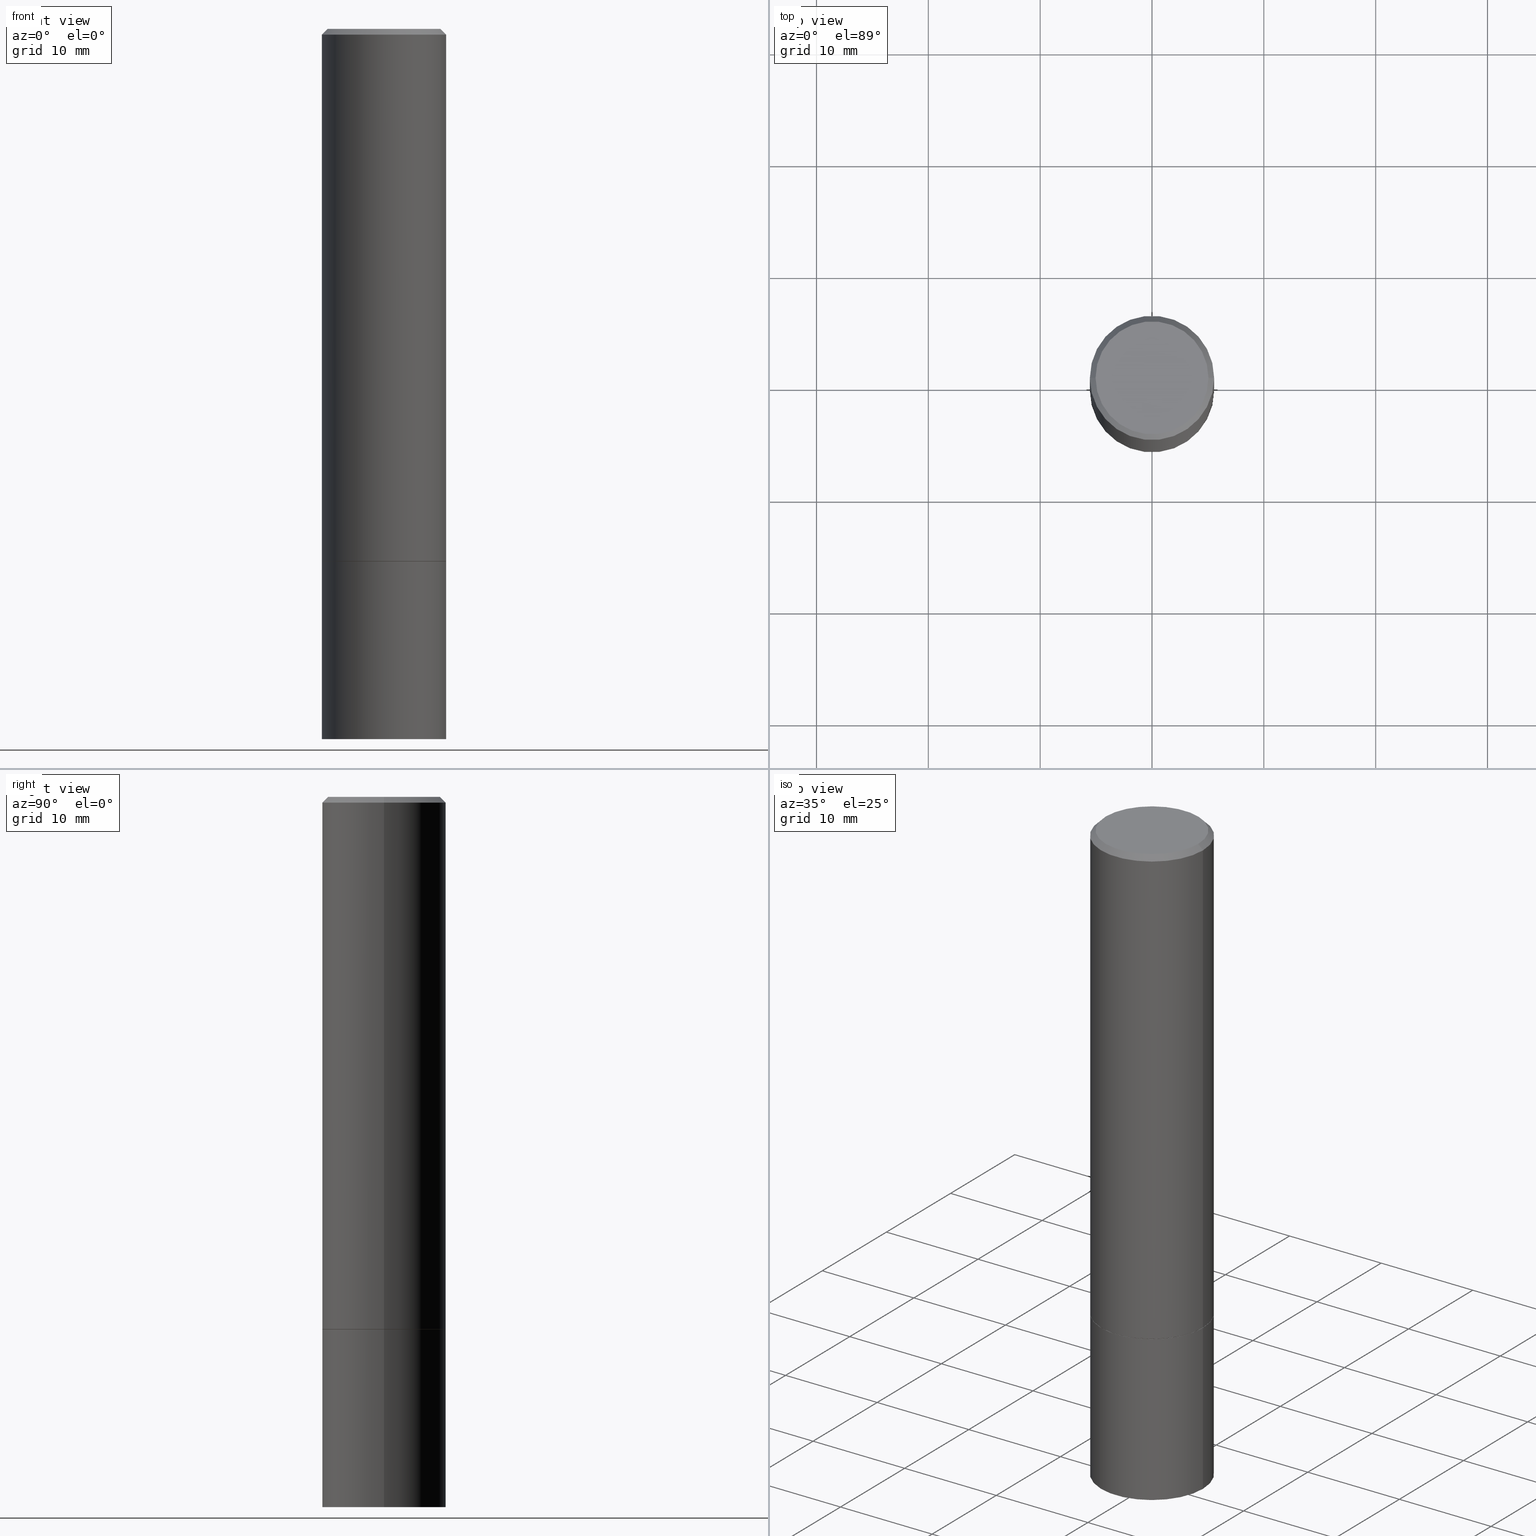
[diagram: canonical four-view strip — front | top / right | iso, engineering-drawing reading convention]
A machine part, canonical four-view strip (front | top / right | iso — engineering-drawing reading convention). The complete STEP part file that produces these views, byte-faithful:
ISO-10303-21;
HEADER;
FILE_DESCRIPTION (( 'STEP AP203' ),
    '1' );
FILE_NAME ('31759.STEP',
    '2024-02-27T13:31:44',
    ( '' ),
    ( '' ),
    'SwSTEP 2.0',
    'SolidWorks 2023',
    '' );
FILE_SCHEMA (( 'CONFIG_CONTROL_DESIGN' ));
ENDSEC;

DATA;
#1 = DIMENSIONAL_EXPONENTS ( 1.000000000000000000, 0.000000000000000000, 0.000000000000000000, 0.000000000000000000, 0.000000000000000000, 0.000000000000000000, 0.000000000000000000 ) ;
#2 = APPROVAL_ROLE ( '' ) ;
#3 = AXIS2_PLACEMENT_3D ( 'NONE', #320, #345, #65 ) ;
#4 = DIRECTION ( 'NONE',  ( 1.000000000000000000, -6.982962677686266711E-15, 4.876176775795935232E-29 ) ) ;
#5 = AXIS2_PLACEMENT_3D ( 'NONE', #137, #243, #55 ) ;
#6 = FACE_OUTER_BOUND ( 'NONE', #306, .T. ) ;
#7 = CALENDAR_DATE ( 2024, 27, 2 ) ;
#8 = EDGE_CURVE ( 'NONE', #352, #261, #10, .T. ) ;
#9 = PERSON_AND_ORGANIZATION_ROLE ( 'classification_officer' ) ;
#10 = CIRCLE ( 'NONE', #242, 0.2187500000000000000 ) ;
#11 = CC_DESIGN_APPROVAL ( #148, ( #36 ) ) ;
#12 = LINE ( 'NONE', #96, #154 ) ;
#13 = EDGE_LOOP ( 'NONE', ( #21, #19, #161, #298 ) ) ;
#14 = CARTESIAN_POINT ( 'NONE',  ( -0.2187500000000000000, -6.083303194244162668E-15, -1.875000000000000000 ) ) ;
#15 = EDGE_CURVE ( 'NONE', #180, #178, #305, .T. ) ;
#16 = ORIENTED_EDGE ( 'NONE', *, *, #341, .F. ) ;
#17 = APPROVAL_PERSON_ORGANIZATION ( #84, #148, #319 ) ;
#18 = CARTESIAN_POINT ( 'NONE',  ( 4.585254011597131119E-29, -6.546527510330898707E-15, -1.875000000000000000 ) ) ;
#19 = ORIENTED_EDGE ( 'NONE', *, *, #170, .T. ) ;
#20 = CARTESIAN_POINT ( 'NONE',  ( 4.585254011597131119E-29, -6.546527510330898707E-15, -1.875000000000000000 ) ) ;
#21 = ORIENTED_EDGE ( 'NONE', *, *, #241, .F. ) ;
#22 = DIRECTION ( 'NONE',  ( -2.445468806185136877E-29, 3.491481338843145188E-15, 1.000000000000000000 ) ) ;
#23 = EDGE_LOOP ( 'NONE', ( #122, #326 ) ) ;
#24 = DIRECTION ( 'NONE',  ( 2.445468806185136597E-29, -3.491481338843145583E-15, -1.000000000000000000 ) ) ;
#25 = LINE ( 'NONE', #364, #303 ) ;
#26 = DIRECTION ( 'NONE',  ( 1.000000000000000000, -6.982962677686266711E-15, 0.000000000000000000 ) ) ;
#27 = ADVANCED_FACE ( 'NONE', ( #107 ), #58, .T. ) ;
#28 = SHAPE_DEFINITION_REPRESENTATION ( #287, #88 ) ;
#29 = CIRCLE ( 'NONE', #66, 0.2187500000000000000 ) ;
#30 = FACE_OUTER_BOUND ( 'NONE', #301, .T. ) ;
#31 = DIRECTION ( 'NONE',  ( -2.445468806185136877E-29, 3.491481338843145188E-15, 1.000000000000000000 ) ) ;
#32 = EDGE_CURVE ( 'NONE', #45, #264, #37, .T. ) ;
#33 = COORDINATED_UNIVERSAL_TIME_OFFSET ( 5, 0, .BEHIND. ) ;
#34 = PERSON_AND_ORGANIZATION ( #142, #275 ) ;
#35 = AXIS2_PLACEMENT_3D ( 'NONE', #140, #246, #304 ) ;
#36 = PRODUCT_DEFINITION_FORMATION_WITH_SPECIFIED_SOURCE ( 'ANY', '', #201, .NOT_KNOWN. ) ;
#37 = CIRCLE ( 'NONE', #333, 0.2187500000000000000 ) ;
#38 = COORDINATED_UNIVERSAL_TIME_OFFSET ( 5, 0, .BEHIND. ) ;
#39 = DIRECTION ( 'NONE',  ( 1.000000000000000000, -6.982962677686266711E-15, 4.876176775795935232E-29 ) ) ;
#40 = SECURITY_CLASSIFICATION ( '', '', #340 ) ;
#41 = PLANE ( 'NONE',  #72 ) ;
#42 = EDGE_CURVE ( 'NONE', #261, #352, #29, .T. ) ;
#43 = FACE_OUTER_BOUND ( 'NONE', #128, .T. ) ;
#44 = VERTEX_POINT ( 'NONE', #219 ) ;
#45 = VERTEX_POINT ( 'NONE', #83 ) ;
#46 = LOCAL_TIME ( 8, 31, 44.00000000000000000, #280 ) ;
#47 = CARTESIAN_POINT ( 'NONE',  ( 0.2187499999999997502, -1.570563563789383855E-15, -0.02000000000000006287 ) ) ;
#48 = ORIENTED_EDGE ( 'NONE', *, *, #89, .T. ) ;
#49 = CC_DESIGN_PERSON_AND_ORGANIZATION_ASSIGNMENT ( #221, #92, ( #91 ) ) ;
#50 = ORIENTED_EDGE ( 'NONE', *, *, #247, .T. ) ;
#51 = AXIS2_PLACEMENT_3D ( 'NONE', #343, #87, #39 ) ;
#52 = CARTESIAN_POINT ( 'NONE',  ( 0.000000000000000000, 0.000000000000000000, 0.000000000000000000 ) ) ;
#53 = CARTESIAN_POINT ( 'NONE',  ( 4.890937612370288923E-31, -6.982962677686312563E-17, -0.02000000000000006287 ) ) ;
#54 = CARTESIAN_POINT ( 'NONE',  ( 4.582808542790945516E-29, -6.543036028992054911E-15, -1.874000000000000110 ) ) ;
#55 = DIRECTION ( 'NONE',  ( 1.000000000000000000, -6.982962677686269077E-15, 0.000000000000000000 ) ) ;
#56 = EDGE_CURVE ( 'NONE', #131, #44, #268, .T. ) ;
#57 = CALENDAR_DATE ( 2024, 27, 2 ) ;
#58 = CYLINDRICAL_SURFACE ( 'NONE', #123, 0.2187499999999998612 ) ;
#59 = CC_DESIGN_PERSON_AND_ORGANIZATION_ASSIGNMENT ( #34, #9, ( #40 ) ) ;
#60 = COORDINATED_UNIVERSAL_TIME_OFFSET ( 5, 0, .BEHIND. ) ;
#61 = CARTESIAN_POINT ( 'NONE',  ( 4.585254011597131119E-29, -6.546527510330898707E-15, -1.875000000000000000 ) ) ;
#62 = AXIS2_PLACEMENT_3D ( 'NONE', #189, #339, #366 ) ;
#63 = FACE_OUTER_BOUND ( 'NONE', #331, .T. ) ;
#64 = PERSON_AND_ORGANIZATION_ROLE ( 'design_supplier' ) ;
#65 = DIRECTION ( 'NONE',  ( -1.000000000000000000, 6.982962677686265922E-15, -4.876176775795935793E-29 ) ) ;
#66 = AXIS2_PLACEMENT_3D ( 'NONE', #109, #223, #169 ) ;
#67 = CYLINDRICAL_SURFACE ( 'NONE', #250, 0.2187499999999998612 ) ;
#68 = CARTESIAN_POINT ( 'NONE',  ( -0.2177499999999999991, -4.999320703213280559E-15, -1.875000000000000000 ) ) ;
#69 = EDGE_LOOP ( 'NONE', ( #103, #330, #75, #156 ) ) ;
#70 = ORIENTED_EDGE ( 'NONE', *, *, #258, .F. ) ;
#71 = EDGE_LOOP ( 'NONE', ( #293, #237, #133, #183 ) ) ;
#72 = AXIS2_PLACEMENT_3D ( 'NONE', #211, #102, #296 ) ;
#73 = ORIENTED_EDGE ( 'NONE', *, *, #15, .F. ) ;
#74 =( NAMED_UNIT ( * ) PLANE_ANGLE_UNIT ( ) SI_UNIT ( $, .RADIAN. ) );
#75 = ORIENTED_EDGE ( 'NONE', *, *, #89, .F. ) ;
#76 = DIRECTION ( 'NONE',  ( 1.000000000000000000, -6.982962677686266711E-15, 4.876176775795935232E-29 ) ) ;
#77 = AXIS2_PLACEMENT_3D ( 'NONE', #18, #132, #179 ) ;
#78 = VECTOR ( 'NONE', #31, 39.37007874015748143 ) ;
#79 = DIRECTION ( 'NONE',  ( 1.000000000000000000, -6.982962677686266711E-15, 0.000000000000000000 ) ) ;
#80 = LENGTH_MEASURE_WITH_UNIT ( LENGTH_MEASURE( 0.02539999999999999897 ), #272 );
#81 = ORIENTED_EDGE ( 'NONE', *, *, #116, .T. ) ;
#82 = EDGE_CURVE ( 'NONE', #105, #263, #274, .T. ) ;
#83 = CARTESIAN_POINT ( 'NONE',  ( 0.2187500000000000000, -8.074050596074770339E-15, -1.875000000000000000 ) ) ;
#84 = PERSON_AND_ORGANIZATION ( #142, #275 ) ;
#85 = CARTESIAN_POINT ( 'NONE',  ( 0.000000000000000000, 0.000000000000000000, 0.000000000000000000 ) ) ;
#86 = PERSON_AND_ORGANIZATION ( #142, #275 ) ;
#87 = DIRECTION ( 'NONE',  ( -2.445468806185136597E-29, 3.491481338843145583E-15, 1.000000000000000000 ) ) ;
#88 = ADVANCED_BREP_SHAPE_REPRESENTATION ( '31759', ( #134, #255, #171 ), #347 ) ;
#89 = EDGE_CURVE ( 'NONE', #105, #229, #284, .T. ) ;
#90 = AXIS2_PLACEMENT_3D ( 'NONE', #309, #24, #214 ) ;
#91 = PRODUCT_DEFINITION ( 'UNKNOWN', '', #36, #279 ) ;
#92 = PERSON_AND_ORGANIZATION_ROLE ( 'creator' ) ;
#93 = FACE_OUTER_BOUND ( 'NONE', #71, .T. ) ;
#94 = ADVANCED_FACE ( 'NONE', ( #30 ), #346, .T. ) ;
#95 = AXIS2_PLACEMENT_3D ( 'NONE', #322, #360, #152 ) ;
#96 = CARTESIAN_POINT ( 'NONE',  ( 0.2177499999999999991, -8.067067633397082747E-15, -1.875000000000000000 ) ) ;
#97 = ORIENTED_EDGE ( 'NONE', *, *, #312, .T. ) ;
#98 = APPLICATION_CONTEXT ( 'configuration controlled 3d designs of mechanical parts and assemblies' ) ;
#99 = AXIS2_PLACEMENT_3D ( 'NONE', #20, #236, #359 ) ;
#100 = LINE ( 'NONE', #357, #138 ) ;
#101 = ORIENTED_EDGE ( 'NONE', *, *, #341, .T. ) ;
#102 = DIRECTION ( 'NONE',  ( 2.438088387897960049E-29, -3.491481338843145188E-15, -1.000000000000000000 ) ) ;
#103 = ORIENTED_EDGE ( 'NONE', *, *, #15, .T. ) ;
#104 = CARTESIAN_POINT ( 'NONE',  ( -0.2187500000000000000, -6.083303194244162668E-15, -2.500000000000000000 ) ) ;
#105 = VERTEX_POINT ( 'NONE', #168 ) ;
#106 = DIRECTION ( 'NONE',  ( 1.000000000000000000, -6.982962677686266711E-15, 0.000000000000000000 ) ) ;
#107 = FACE_OUTER_BOUND ( 'NONE', #13, .T. ) ;
#108 = DIRECTION ( 'NONE',  ( -2.445468806185136597E-29, 3.491481338843145583E-15, 1.000000000000000000 ) ) ;
#109 = CARTESIAN_POINT ( 'NONE',  ( 6.113672015462842613E-29, -8.728703347107864943E-15, -2.500000000000000000 ) ) ;
#110 = CARTESIAN_POINT ( 'NONE',  ( 0.000000000000000000, 0.000000000000000000, 0.000000000000000000 ) ) ;
#111 = APPROVAL ( #193, 'UNSPECIFIED' ) ;
#112 = FACE_OUTER_BOUND ( 'NONE', #235, .T. ) ;
#113 = AXIS2_PLACEMENT_3D ( 'NONE', #110, #334, #192 ) ;
#114 = APPROVAL_DATE_TIME ( #252, #111 ) ;
#115 = CARTESIAN_POINT ( 'NONE',  ( 0.000000000000000000, 0.000000000000000000, 0.000000000000000000 ) ) ;
#116 = EDGE_CURVE ( 'NONE', #44, #131, #353, .T. ) ;
#117 = PERSON_AND_ORGANIZATION ( #142, #275 ) ;
#118 = CALENDAR_DATE ( 2024, 27, 2 ) ;
#119 = CONICAL_SURFACE ( 'NONE', #327, 0.2177499999999999991, 0.7853981633973970977 ) ;
#120 = DATE_AND_TIME ( #208, #217 ) ;
#121 = FACE_OUTER_BOUND ( 'NONE', #356, .T. ) ;
#122 = ORIENTED_EDGE ( 'NONE', *, *, #42, .F. ) ;
#123 = AXIS2_PLACEMENT_3D ( 'NONE', #52, #276, #271 ) ;
#124 = CARTESIAN_POINT ( 'NONE',  ( 0.2187500000000000000, -1.527523085743870843E-15, 1.066663669705360885E-29 ) ) ;
#125 = ORIENTED_EDGE ( 'NONE', *, *, #82, .F. ) ;
#126 = CLOSED_SHELL ( 'NONE', ( #190, #222, #325, #218 ) ) ;
#127 = LINE ( 'NONE', #47, #143 ) ;
#128 = EDGE_LOOP ( 'NONE', ( #238, #101 ) ) ;
#129 = EDGE_CURVE ( 'NONE', #131, #206, #25, .T. ) ;
#130 = CARTESIAN_POINT ( 'NONE',  ( 0.2187499999999997502, -1.570563563789383855E-15, -0.02000000000000006287 ) ) ;
#131 = VERTEX_POINT ( 'NONE', #136 ) ;
#132 = DIRECTION ( 'NONE',  ( -2.438088387897960049E-29, 3.491481338843145188E-15, 1.000000000000000000 ) ) ;
#133 = ORIENTED_EDGE ( 'NONE', *, *, #32, .F. ) ;
#134 = MANIFOLD_SOLID_BREP ( 'Body-Move/Copy2[1]', #126 ) ;
#135 = ORIENTED_EDGE ( 'NONE', *, *, #307, .F. ) ;
#136 = CARTESIAN_POINT ( 'NONE',  ( -0.1987499999999997324, 1.422778645578574712E-15, -9.827974342635069682E-30 ) ) ;
#137 = CARTESIAN_POINT ( 'NONE',  ( 4.582808542790945516E-29, -6.543036028992054911E-15, -1.874000000000000110 ) ) ;
#138 = VECTOR ( 'NONE', #205, 39.37007874015748143 ) ;
#139 = CARTESIAN_POINT ( 'NONE',  ( 4.585254011597131119E-29, -6.546527510330898707E-15, -1.875000000000000000 ) ) ;
#140 = CARTESIAN_POINT ( 'NONE',  ( 4.585254011597131119E-29, -6.546527510330898707E-15, -1.875000000000000000 ) ) ;
#141 = PERSON_AND_ORGANIZATION ( #142, #275 ) ;
#142 = PERSON ( 'UNSPECIFIED', 'UNSPECIFIED', 'UNSPECIFIED', ('UNSPECIFIED'), ('UNSPECIFIED'), ('UNSPECIFIED') ) ;
#143 = VECTOR ( 'NONE', #160, 39.37007874015748143 ) ;
#144 = LOCAL_TIME ( 8, 31, 44.00000000000000000, #173 ) ;
#145 = AXIS2_PLACEMENT_3D ( 'NONE', #61, #228, #226 ) ;
#146 = DIRECTION ( 'NONE',  ( 1.000000000000000000, 0.000000000000000000, 0.000000000000000000 ) ) ;
#147 = FACE_OUTER_BOUND ( 'NONE', #23, .T. ) ;
#148 = APPROVAL ( #310, 'UNSPECIFIED' ) ;
#149 = APPROVAL_DATE_TIME ( #318, #148 ) ;
#150 = FACE_OUTER_BOUND ( 'NONE', #69, .T. ) ;
#151 = ADVANCED_FACE ( 'NONE', ( #112 ), #165, .T. ) ;
#152 = DIRECTION ( 'NONE',  ( 1.000000000000000000, -6.982962677686266711E-15, 0.000000000000000000 ) ) ;
#153 = ORIENTED_EDGE ( 'NONE', *, *, #162, .T. ) ;
#154 = VECTOR ( 'NONE', #182, 39.37007874015748143 ) ;
#155 = ADVANCED_FACE ( 'NONE', ( #194 ), #119, .T. ) ;
#156 = ORIENTED_EDGE ( 'NONE', *, *, #247, .F. ) ;
#157 = DIRECTION ( 'NONE',  ( 1.000000000000000000, -6.982962677686266711E-15, 4.876176775795935793E-29 ) ) ;
#158 = ORIENTED_EDGE ( 'NONE', *, *, #8, .T. ) ;
#159 = APPROVAL ( #196, 'UNSPECIFIED' ) ;
#160 = DIRECTION ( 'NONE',  ( 0.7071067811865469066, -7.319954787623254468E-15, -0.7071067811865482389 ) ) ;
#161 = ORIENTED_EDGE ( 'NONE', *, *, #82, .T. ) ;
#162 = EDGE_CURVE ( 'NONE', #206, #263, #262, .T. ) ;
#163 = AXIS2_PLACEMENT_3D ( 'NONE', #53, #337, #26 ) ;
#164 = ORIENTED_EDGE ( 'NONE', *, *, #312, .F. ) ;
#165 = CONICAL_SURFACE ( 'NONE', #62, 0.2187499999999997502, 0.7853981633974473908 ) ;
#166 = APPLICATION_PROTOCOL_DEFINITION ( 'international standard', 'config_control_design', 1994, #98 ) ;
#167 = DIRECTION ( 'NONE',  ( 1.000000000000000000, -6.982962677686267499E-15, 0.000000000000000000 ) ) ;
#168 = CARTESIAN_POINT ( 'NONE',  ( 0.2187499999999999445, -8.070559114735925754E-15, -1.874000000000000110 ) ) ;
#169 = DIRECTION ( 'NONE',  ( 1.000000000000000000, -6.982962677686267499E-15, 0.000000000000000000 ) ) ;
#170 = EDGE_CURVE ( 'NONE', #229, #105, #294, .T. ) ;
#171 = AXIS2_PLACEMENT_3D ( 'NONE', #115, #348, #146 ) ;
#172 = CARTESIAN_POINT ( 'NONE',  ( 0.2177499999999999991, -8.067067633397082747E-15, -1.875000000000000000 ) ) ;
#173 = COORDINATED_UNIVERSAL_TIME_OFFSET ( 5, 0, .BEHIND. ) ;
#174 = CYLINDRICAL_SURFACE ( 'NONE', #202, 0.2187500000000000000 ) ;
#175 = DIRECTION ( 'NONE',  ( 2.438088387897960049E-29, -3.491481338843145188E-15, -1.000000000000000000 ) ) ;
#176 = LOCAL_TIME ( 8, 31, 44.00000000000000000, #38 ) ;
#177 = LINE ( 'NONE', #124, #198 ) ;
#178 = VERTEX_POINT ( 'NONE', #335 ) ;
#179 = DIRECTION ( 'NONE',  ( 1.000000000000000000, -6.982962677686265922E-15, 4.876176775795935793E-29 ) ) ;
#180 = VERTEX_POINT ( 'NONE', #172 ) ;
#181 = AXIS2_PLACEMENT_3D ( 'NONE', #266, #234, #106 ) ;
#182 = DIRECTION ( 'NONE',  ( 0.7071067811865112684, -2.468850131081876830E-15, 0.7071067811865837660 ) ) ;
#183 = ORIENTED_EDGE ( 'NONE', *, *, #265, .F. ) ;
#184 = DIRECTION ( 'NONE',  ( -2.445468806185136877E-29, 3.491481338843145188E-15, 1.000000000000000000 ) ) ;
#185 = ORIENTED_EDGE ( 'NONE', *, *, #170, .F. ) ;
#186 = ADVANCED_FACE ( 'NONE', ( #150 ), #224, .T. ) ;
#187 = ORIENTED_EDGE ( 'NONE', *, *, #129, .T. ) ;
#188 = APPLICATION_CONTEXT ( 'configuration controlled 3d designs of mechanical parts and assemblies' ) ;
#189 = CARTESIAN_POINT ( 'NONE',  ( 4.890937612370288923E-31, -6.982962677686312563E-17, -0.02000000000000006287 ) ) ;
#190 = ADVANCED_FACE ( 'NONE', ( #93 ), #174, .T. ) ;
#191 = DIRECTION ( 'NONE',  ( -2.445468806185136597E-29, 3.491481338843145583E-15, 1.000000000000000000 ) ) ;
#192 = DIRECTION ( 'NONE',  ( 1.000000000000000000, -6.982962677686266711E-15, 4.876176775795935232E-29 ) ) ;
#193 = APPROVAL_STATUS ( 'not_yet_approved' ) ;
#194 = FACE_OUTER_BOUND ( 'NONE', #358, .T. ) ;
#195 = CC_DESIGN_PERSON_AND_ORGANIZATION_ASSIGNMENT ( #117, #342, ( #201 ) ) ;
#196 = APPROVAL_STATUS ( 'not_yet_approved' ) ;
#197 = APPLICATION_PROTOCOL_DEFINITION ( 'international standard', 'config_control_design', 1994, #188 ) ;
#198 = VECTOR ( 'NONE', #22, 39.37007874015748143 ) ;
#199 = PERSON_AND_ORGANIZATION ( #142, #275 ) ;
#200 = DATE_AND_TIME ( #7, #176 ) ;
#201 = PRODUCT ( '31759', '31759', '', ( #313 ) ) ;
#202 = AXIS2_PLACEMENT_3D ( 'NONE', #349, #281, #4 ) ;
#203 = CARTESIAN_POINT ( 'NONE',  ( -0.2187499999999999445, -1.752120593409238962E-15, -1.874000000000000110 ) ) ;
#204 = ORIENTED_EDGE ( 'NONE', *, *, #258, .T. ) ;
#205 = DIRECTION ( 'NONE',  ( -2.445468806185136877E-29, 3.491481338843145188E-15, 1.000000000000000000 ) ) ;
#206 = VERTEX_POINT ( 'NONE', #251 ) ;
#207 = ORIENTED_EDGE ( 'NONE', *, *, #56, .F. ) ;
#208 = CALENDAR_DATE ( 2024, 27, 2 ) ;
#209 = LINE ( 'NONE', #329, #249 ) ;
#210 = ORIENTED_EDGE ( 'NONE', *, *, #129, .F. ) ;
#211 = CARTESIAN_POINT ( 'NONE',  ( 1.527523085743916400E-15, 0.2187499999999934219, -1.875000000000000888 ) ) ;
#212 = ORIENTED_EDGE ( 'NONE', *, *, #241, .T. ) ;
#213 = UNCERTAINTY_MEASURE_WITH_UNIT (LENGTH_MEASURE( 1.000000000000000082E-05 ), #215, 'distance_accuracy_value', 'NONE');
#214 = DIRECTION ( 'NONE',  ( -1.000000000000000000, 6.982962677686266711E-15, 0.000000000000000000 ) ) ;
#215 =( CONVERSION_BASED_UNIT ( 'INCH', #80 ) LENGTH_UNIT ( ) NAMED_UNIT ( #1 ) );
#216 = DIRECTION ( 'NONE',  ( -2.445468806185136597E-29, 3.491481338843145583E-15, 1.000000000000000000 ) ) ;
#217 = LOCAL_TIME ( 8, 31, 44.00000000000000000, #60 ) ;
#218 = ADVANCED_FACE ( 'NONE', ( #6 ), #351, .T. ) ;
#219 = CARTESIAN_POINT ( 'NONE',  ( 0.1987499999999997324, -1.467043770423236875E-15, 9.982525199991772484E-30 ) ) ;
#220 = CARTESIAN_POINT ( 'NONE',  ( 0.2187499999999998612, -1.527523085743869857E-15, 1.066663669705360324E-29 ) ) ;
#221 = PERSON_AND_ORGANIZATION ( #142, #275 ) ;
#222 = ADVANCED_FACE ( 'NONE', ( #147 ), #314, .T. ) ;
#223 = DIRECTION ( 'NONE',  ( -2.445468806185136597E-29, 3.491481338843145583E-15, 1.000000000000000000 ) ) ;
#224 = CONICAL_SURFACE ( 'NONE', #145, 0.2177499999999999991, 0.7853981633973970977 ) ;
#225 = DATE_TIME_ROLE ( 'classification_date' ) ;
#226 = DIRECTION ( 'NONE',  ( 1.000000000000000000, -6.982962677686266711E-15, 0.000000000000000000 ) ) ;
#227 = ADVANCED_FACE ( 'NONE', ( #63 ), #253, .F. ) ;
#228 = DIRECTION ( 'NONE',  ( -2.445468806185136597E-29, 3.491481338843145583E-15, 1.000000000000000000 ) ) ;
#229 = VERTEX_POINT ( 'NONE', #203 ) ;
#230 = VECTOR ( 'NONE', #291, 39.37007874015748143 ) ;
#231 = PLANE ( 'NONE',  #77 ) ;
#232 = CLOSED_SHELL ( 'NONE', ( #186, #336, #151, #94, #27, #155, #297, #227 ) ) ;
#233 = ORIENTED_EDGE ( 'NONE', *, *, #285, .T. ) ;
#234 = DIRECTION ( 'NONE',  ( -2.445468806185136597E-29, 3.491481338843145583E-15, 1.000000000000000000 ) ) ;
#235 = EDGE_LOOP ( 'NONE', ( #292, #233, #97, #210 ) ) ;
#236 = DIRECTION ( 'NONE',  ( -2.445468806185136597E-29, 3.491481338843145583E-15, 1.000000000000000000 ) ) ;
#237 = ORIENTED_EDGE ( 'NONE', *, *, #254, .T. ) ;
#238 = ORIENTED_EDGE ( 'NONE', *, *, #32, .T. ) ;
#239 = CARTESIAN_POINT ( 'NONE',  ( 6.113672015462842613E-29, -8.728703347107864943E-15, -2.500000000000000000 ) ) ;
#240 = CARTESIAN_POINT ( 'NONE',  ( 4.585254011597131119E-29, -6.546527510330898707E-15, -1.875000000000000000 ) ) ;
#241 = EDGE_CURVE ( 'NONE', #229, #206, #209, .T. ) ;
#242 = AXIS2_PLACEMENT_3D ( 'NONE', #239, #191, #362 ) ;
#243 = DIRECTION ( 'NONE',  ( -2.445468806185136597E-29, 3.491481338843145583E-15, 1.000000000000000000 ) ) ;
#244 = CC_DESIGN_SECURITY_CLASSIFICATION ( #40, ( #36 ) ) ;
#245 = CC_DESIGN_PERSON_AND_ORGANIZATION_ASSIGNMENT ( #141, #64, ( #36 ) ) ;
#246 = DIRECTION ( 'NONE',  ( -2.445468806185136597E-29, 3.491481338843145583E-15, 1.000000000000000000 ) ) ;
#247 = EDGE_CURVE ( 'NONE', #180, #105, #12, .T. ) ;
#248 = DATE_AND_TIME ( #118, #283 ) ;
#249 = VECTOR ( 'NONE', #184, 39.37007874015748143 ) ;
#250 = AXIS2_PLACEMENT_3D ( 'NONE', #260, #355, #157 ) ;
#251 = CARTESIAN_POINT ( 'NONE',  ( -0.2187499999999997502, 1.457693458967005967E-15, -0.02000000000000006287 ) ) ;
#252 = DATE_AND_TIME ( #286, #144 ) ;
#253 = PLANE ( 'NONE',  #315 ) ;
#254 = EDGE_CURVE ( 'NONE', #352, #264, #100, .T. ) ;
#255 = MANIFOLD_SOLID_BREP ( 'Body-Move/Copy2[2]', #232 ) ;
#256 = PERSON_AND_ORGANIZATION_ROLE ( 'creator' ) ;
#257 = PRODUCT_RELATED_PRODUCT_CATEGORY ( 'detail', '', ( #201 ) ) ;
#258 = EDGE_CURVE ( 'NONE', #178, #180, #365, .T. ) ;
#259 = FACE_OUTER_BOUND ( 'NONE', #267, .T. ) ;
#260 = CARTESIAN_POINT ( 'NONE',  ( 0.000000000000000000, 0.000000000000000000, 0.000000000000000000 ) ) ;
#261 = VERTEX_POINT ( 'NONE', #299 ) ;
#262 = CIRCLE ( 'NONE', #163, 0.2187499999999997502 ) ;
#263 = VERTEX_POINT ( 'NONE', #130 ) ;
#264 = VERTEX_POINT ( 'NONE', #14 ) ;
#265 = EDGE_CURVE ( 'NONE', #261, #45, #177, .T. ) ;
#266 = CARTESIAN_POINT ( 'NONE',  ( 4.890937612370288923E-31, -6.982962677686312563E-17, -0.02000000000000006287 ) ) ;
#267 = EDGE_LOOP ( 'NONE', ( #48, #212, #164, #125 ) ) ;
#268 = CIRCLE ( 'NONE', #113, 0.1987499999999997324 ) ;
#269 = DIRECTION ( 'NONE',  ( -2.445468806185136597E-29, 3.491481338843145583E-15, 1.000000000000000000 ) ) ;
#270 = DIRECTION ( 'NONE',  ( 1.000000000000000000, -6.982962677686269077E-15, 0.000000000000000000 ) ) ;
#271 = DIRECTION ( 'NONE',  ( 1.000000000000000000, -6.982962677686266711E-15, 4.876176775795935793E-29 ) ) ;
#272 =( LENGTH_UNIT ( ) NAMED_UNIT ( * ) SI_UNIT ( $, .METRE. ) );
#273 = CIRCLE ( 'NONE', #99, 0.2187500000000000000 ) ;
#274 = LINE ( 'NONE', #220, #78 ) ;
#275 = ORGANIZATION ( 'UNSPECIFIED', 'UNSPECIFIED', '' ) ;
#276 = DIRECTION ( 'NONE',  ( -2.445468806185136597E-29, 3.491481338843145583E-15, 1.000000000000000000 ) ) ;
#277 = PERSON_AND_ORGANIZATION ( #142, #275 ) ;
#278 = CARTESIAN_POINT ( 'NONE',  ( 1.387863832190143458E-15, 0.1987499999999997324, -6.939319160950741940E-16 ) ) ;
#279 = DESIGN_CONTEXT ( 'detailed design', #188, 'design' ) ;
#280 = COORDINATED_UNIVERSAL_TIME_OFFSET ( 5, 0, .BEHIND. ) ;
#281 = DIRECTION ( 'NONE',  ( -2.445468806185136597E-29, 3.491481338843145583E-15, 1.000000000000000000 ) ) ;
#282 = CIRCLE ( 'NONE', #181, 0.2187499999999997502 ) ;
#283 = LOCAL_TIME ( 8, 31, 44.00000000000000000, #33 ) ;
#284 = CIRCLE ( 'NONE', #338, 0.2187499999999999445 ) ;
#285 = EDGE_CURVE ( 'NONE', #44, #263, #127, .T. ) ;
#286 = CALENDAR_DATE ( 2024, 27, 2 ) ;
#287 = PRODUCT_DEFINITION_SHAPE ( 'NONE', 'NONE',  #91 ) ;
#288 = DIRECTION ( 'NONE',  ( -1.000000000000000000, 6.982962677686265922E-15, -4.876176775795935793E-29 ) ) ;
#289 = APPROVAL_PERSON_ORGANIZATION ( #199, #111, #2 ) ;
#290 = LINE ( 'NONE', #68, #230 ) ;
#291 = DIRECTION ( 'NONE',  ( -0.7071067811865112684, 7.493145998870223209E-15, 0.7071067811865837660 ) ) ;
#292 = ORIENTED_EDGE ( 'NONE', *, *, #116, .F. ) ;
#293 = ORIENTED_EDGE ( 'NONE', *, *, #42, .T. ) ;
#294 = CIRCLE ( 'NONE', #5, 0.2187499999999999445 ) ;
#295 = CC_DESIGN_APPROVAL ( #111, ( #91 ) ) ;
#296 = DIRECTION ( 'NONE',  ( -1.000000000000000000, 6.982962677686265922E-15, -4.876176775795935793E-29 ) ) ;
#297 = ADVANCED_FACE ( 'NONE', ( #121 ), #231, .F. ) ;
#298 = ORIENTED_EDGE ( 'NONE', *, *, #162, .F. ) ;
#299 = CARTESIAN_POINT ( 'NONE',  ( 0.2187500000000000000, -1.025622643285173500E-14, -2.500000000000000000 ) ) ;
#300 = ORIENTED_EDGE ( 'NONE', *, *, #285, .F. ) ;
#301 = EDGE_LOOP ( 'NONE', ( #300, #207, #187, #153 ) ) ;
#302 = APPROVAL_DATE_TIME ( #120, #159 ) ;
#303 = VECTOR ( 'NONE', #308, 39.37007874015748143 ) ;
#304 = DIRECTION ( 'NONE',  ( 1.000000000000000000, -6.982962677686266711E-15, 0.000000000000000000 ) ) ;
#305 = CIRCLE ( 'NONE', #35, 0.2177499999999999991 ) ;
#306 = EDGE_LOOP ( 'NONE', ( #361, #158, #324, #16 ) ) ;
#307 = EDGE_CURVE ( 'NONE', #178, #229, #290, .T. ) ;
#308 = DIRECTION ( 'NONE',  ( -0.7071067811865469066, 2.468850131082249961E-15, -0.7071067811865482389 ) ) ;
#309 = CARTESIAN_POINT ( 'NONE',  ( 4.890937612370288923E-31, -6.982962677686312563E-17, -0.02000000000000006287 ) ) ;
#310 = APPROVAL_STATUS ( 'not_yet_approved' ) ;
#311 = APPROVAL_ROLE ( '' ) ;
#312 = EDGE_CURVE ( 'NONE', #263, #206, #282, .T. ) ;
#313 = MECHANICAL_CONTEXT ( 'NONE', #98, 'mechanical' ) ;
#314 = PLANE ( 'NONE',  #3 ) ;
#315 = AXIS2_PLACEMENT_3D ( 'NONE', #278, #175, #288 ) ;
#316 = CC_DESIGN_APPROVAL ( #159, ( #40 ) ) ;
#317 = CC_DESIGN_DATE_AND_TIME_ASSIGNMENT ( #200, #344, ( #91 ) ) ;
#318 = DATE_AND_TIME ( #57, #46 ) ;
#319 = APPROVAL_ROLE ( '' ) ;
#320 = CARTESIAN_POINT ( 'NONE',  ( 1.527523085743931585E-15, 0.2187499999999912570, -2.500000000000000444 ) ) ;
#321 = AXIS2_PLACEMENT_3D ( 'NONE', #85, #108, #76 ) ;
#322 = CARTESIAN_POINT ( 'NONE',  ( 4.585254011597131119E-29, -6.546527510330898707E-15, -1.875000000000000000 ) ) ;
#323 = ORIENTED_EDGE ( 'NONE', *, *, #56, .T. ) ;
#324 = ORIENTED_EDGE ( 'NONE', *, *, #265, .T. ) ;
#325 = ADVANCED_FACE ( 'NONE', ( #43 ), #41, .F. ) ;
#326 = ORIENTED_EDGE ( 'NONE', *, *, #8, .F. ) ;
#327 = AXIS2_PLACEMENT_3D ( 'NONE', #240, #216, #79 ) ;
#328 = CC_DESIGN_PERSON_AND_ORGANIZATION_ASSIGNMENT ( #277, #256, ( #36 ) ) ;
#329 = CARTESIAN_POINT ( 'NONE',  ( -0.2187499999999998612, 1.554312234475218171E-15, -1.076017050993259922E-29 ) ) ;
#330 = ORIENTED_EDGE ( 'NONE', *, *, #307, .T. ) ;
#331 = EDGE_LOOP ( 'NONE', ( #323, #81 ) ) ;
#332 = DIRECTION ( 'NONE',  ( -2.445468806185136597E-29, 3.491481338843145583E-15, 1.000000000000000000 ) ) ;
#333 = AXIS2_PLACEMENT_3D ( 'NONE', #139, #269, #167 ) ;
#334 = DIRECTION ( 'NONE',  ( -2.445468806185136597E-29, 3.491481338843145583E-15, 1.000000000000000000 ) ) ;
#335 = CARTESIAN_POINT ( 'NONE',  ( -0.2177499999999999991, -4.994022248865058156E-15, -1.875000000000000000 ) ) ;
#336 = ADVANCED_FACE ( 'NONE', ( #259 ), #67, .T. ) ;
#337 = DIRECTION ( 'NONE',  ( -2.445468806185136597E-29, 3.491481338843145583E-15, 1.000000000000000000 ) ) ;
#338 = AXIS2_PLACEMENT_3D ( 'NONE', #54, #332, #270 ) ;
#339 = DIRECTION ( 'NONE',  ( 2.445468806185136597E-29, -3.491481338843145583E-15, -1.000000000000000000 ) ) ;
#340 = SECURITY_CLASSIFICATION_LEVEL ( 'unclassified' ) ;
#341 = EDGE_CURVE ( 'NONE', #264, #45, #273, .T. ) ;
#342 = PERSON_AND_ORGANIZATION_ROLE ( 'design_owner' ) ;
#343 = CARTESIAN_POINT ( 'NONE',  ( 0.000000000000000000, 0.000000000000000000, 0.000000000000000000 ) ) ;
#344 = DATE_TIME_ROLE ( 'creation_date' ) ;
#345 = DIRECTION ( 'NONE',  ( 2.438088387897960049E-29, -3.491481338843145188E-15, -1.000000000000000000 ) ) ;
#346 = CONICAL_SURFACE ( 'NONE', #90, 0.2187499999999997502, 0.7853981633974473908 ) ;
#347 =( GEOMETRIC_REPRESENTATION_CONTEXT ( 3 ) GLOBAL_UNCERTAINTY_ASSIGNED_CONTEXT ( ( #213 ) ) GLOBAL_UNIT_ASSIGNED_CONTEXT ( ( #215, #74, #363 ) ) REPRESENTATION_CONTEXT ( 'NONE', 'WORKASPACE' ) );
#348 = DIRECTION ( 'NONE',  ( 0.000000000000000000, 0.000000000000000000, 1.000000000000000000 ) ) ;
#349 = CARTESIAN_POINT ( 'NONE',  ( 0.000000000000000000, 0.000000000000000000, 0.000000000000000000 ) ) ;
#350 = CC_DESIGN_DATE_AND_TIME_ASSIGNMENT ( #248, #225, ( #40 ) ) ;
#351 = CYLINDRICAL_SURFACE ( 'NONE', #51, 0.2187500000000000000 ) ;
#352 = VERTEX_POINT ( 'NONE', #104 ) ;
#353 = CIRCLE ( 'NONE', #321, 0.1987499999999997324 ) ;
#354 = APPROVAL_PERSON_ORGANIZATION ( #86, #159, #311 ) ;
#355 = DIRECTION ( 'NONE',  ( -2.445468806185136597E-29, 3.491481338843145583E-15, 1.000000000000000000 ) ) ;
#356 = EDGE_LOOP ( 'NONE', ( #73, #70 ) ) ;
#357 = CARTESIAN_POINT ( 'NONE',  ( -0.2187500000000000000, 1.554312234475219157E-15, -1.076017050993260622E-29 ) ) ;
#358 = EDGE_LOOP ( 'NONE', ( #135, #204, #50, #185 ) ) ;
#359 = DIRECTION ( 'NONE',  ( 1.000000000000000000, -6.982962677686267499E-15, 0.000000000000000000 ) ) ;
#360 = DIRECTION ( 'NONE',  ( -2.445468806185136597E-29, 3.491481338843145583E-15, 1.000000000000000000 ) ) ;
#361 = ORIENTED_EDGE ( 'NONE', *, *, #254, .F. ) ;
#362 = DIRECTION ( 'NONE',  ( 1.000000000000000000, -6.982962677686267499E-15, 0.000000000000000000 ) ) ;
#363 =( NAMED_UNIT ( * ) SI_UNIT ( $, .STERADIAN. ) SOLID_ANGLE_UNIT ( ) );
#364 = CARTESIAN_POINT ( 'NONE',  ( -0.2187499999999997502, 1.457693458967005967E-15, -0.02000000000000006287 ) ) ;
#365 = CIRCLE ( 'NONE', #95, 0.2177499999999999991 ) ;
#366 = DIRECTION ( 'NONE',  ( -1.000000000000000000, 6.982962677686266711E-15, 0.000000000000000000 ) ) ;
ENDSEC;
END-ISO-10303-21;
